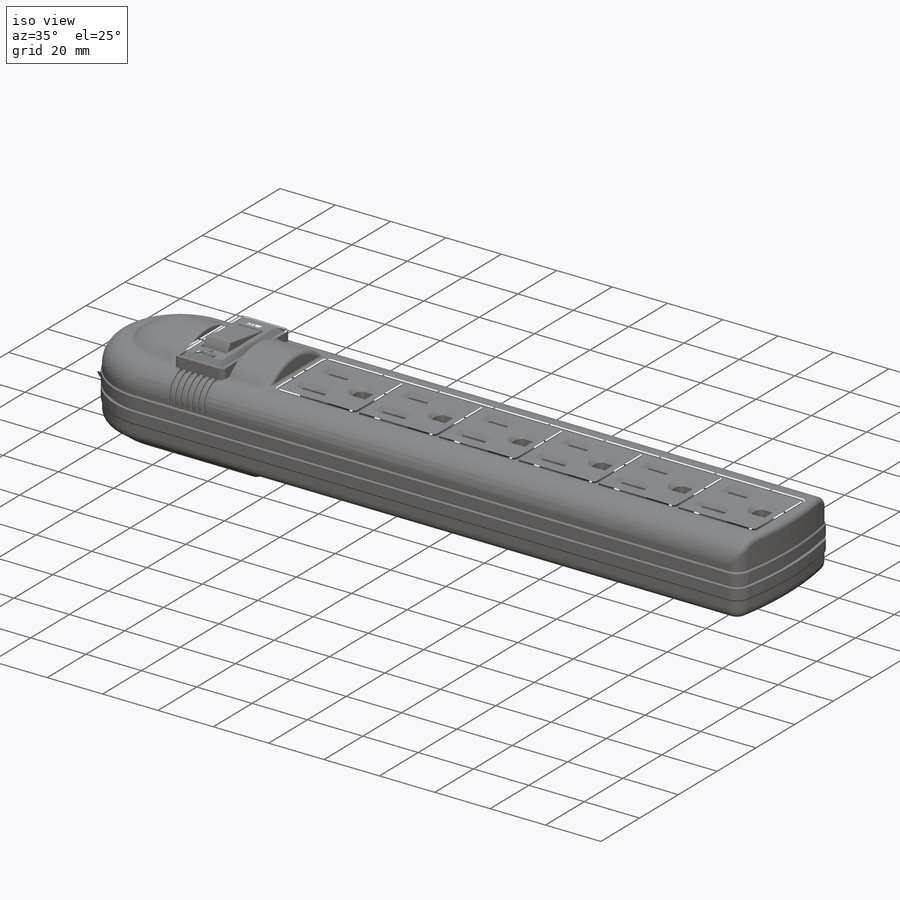
[diagram: iso view]
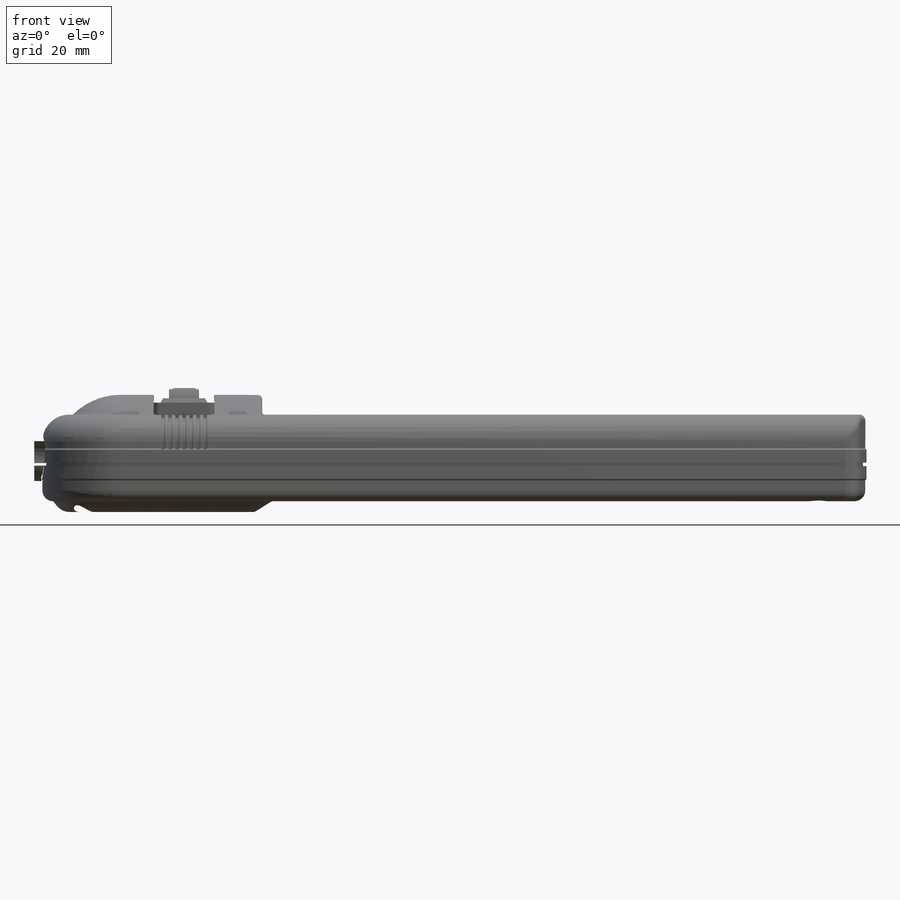
[diagram: front view]
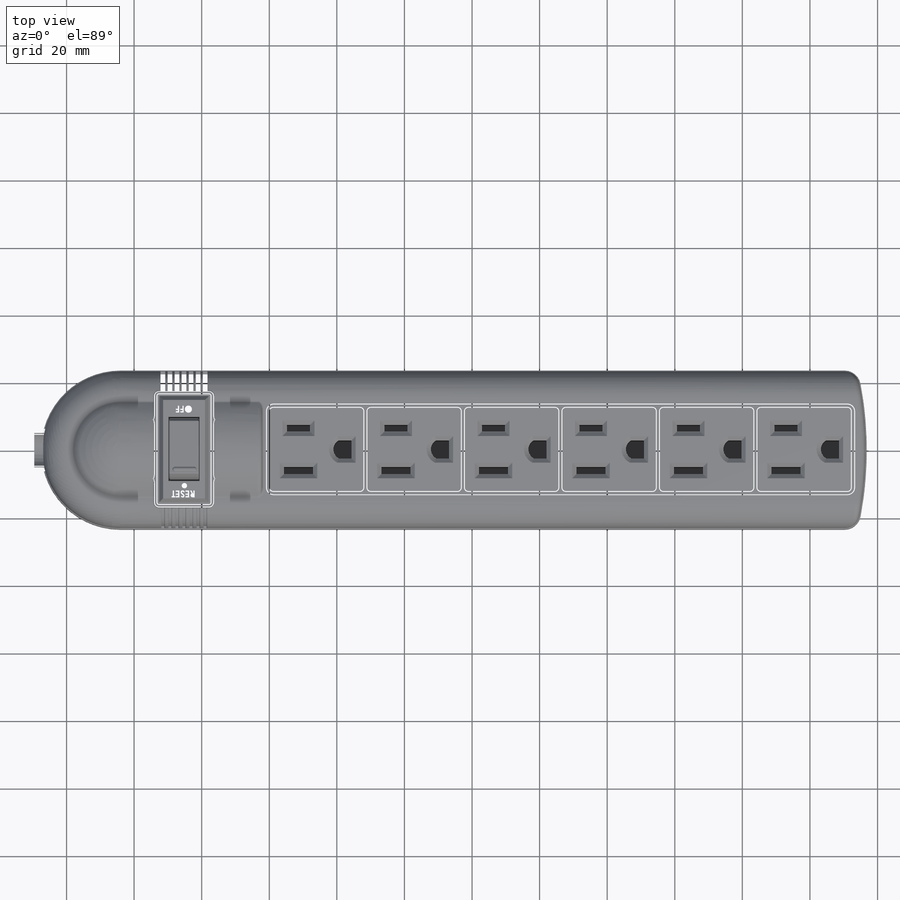
[diagram: top view]
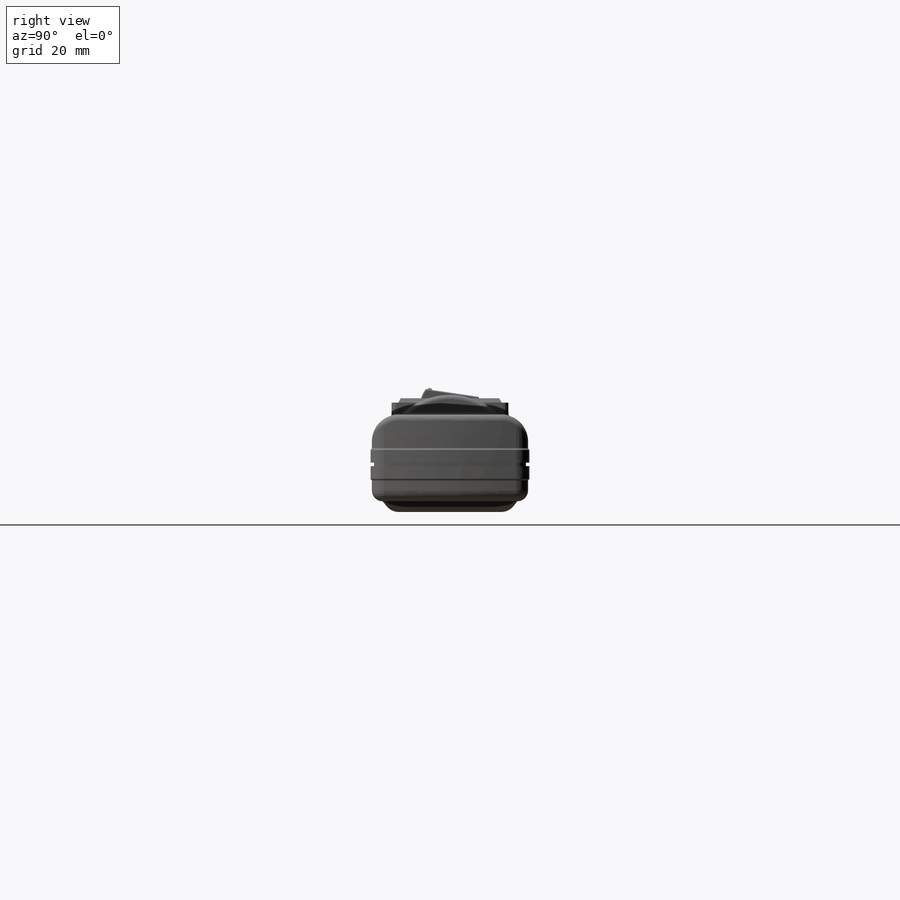
[diagram: right view]
SOLIDWORKS PART (.sldprt)
format: sldprt  version: not decoded by parser v0  size: 2,423,296 bytes
history: native  units: mm
features: fillet x43, sketch x31, extrude x15, cut_extrude x13, pattern_linear x6, plane x5, material x1, revolve x1, chamfer x1, mirror x1 (+11 scaffold rows collapsed)
feature tree (128):
  scaffold x11  (default folders/planes/origin — collapsed)
  material  "Material <not specified>"
  sketch  "Sketch1"  dims[c1.D1=4.7625mm c1.D3=46.99mm c2.D1=46.99mm c2.D2=46.99mm c2.D4=23.495mm c2.D5=214.3125mm c2.D6=214.3125mm]
  extrude  "Base-Extrude"  Depth=9.144mm
  sketch  "Sketch2"  dims[D1=1.016mm]
  cut_extrude  "Cut-Extrude1"  Depth=1.016mm
  sketch  "Sketch3"  dims[D1=0.381mm]
  extrude  "Boss-Extrude1"  Depth=10.16mm
  fillet  "Fillet1"  Radius=7.9375mm
  fillet  "Fillet2"  Radius=1.778mm
  fillet  "Fillet3"  Radius=0.381mm
  fillet  "Fillet4"  Radius=0.381mm
  sketch  "Sketch4"  dims[D1=0.381mm]
  extrude  "Boss-Extrude2"  Depth=6.35mm
  fillet  "Fillet5"  Radius=3.175mm
  sketch  "Sketch5"  dims[D2=3.175mm D1=44.7675mm]
  plane  "Plane1"  Offset=3.175mm
  sketch  "Sketch6"  dims[D3=3.175mm D2=5.08mm D1=2.54mm]
  fillet  "Fillet6"  Radius=4.7498mm
  fillet  "Fillet7"  Radius=1.524mm
  fillet  "Fillet8"  Radius=1.524mm
  sketch  "Sketch7"  dims[D6=3.175mm D1=74.93mm D2=28.448mm D3=14.224mm D4=~95.075491mm D5=42.545mm]
  cut_extrude  "Cut-Extrude2"  Depth=0.508mm
  plane  "Plane2"  Offset=124.026041mm
  sketch  "Sketch10"  dims[D1=28.067mm D2=14.0335mm D3=5.842mm]
  revolve  "Boss-Revolve2"  Angle=180deg
  sketch  "Sketch11"  dims[D1=0.0mm]
  extrude  "Boss-Extrude4"  Depth=41.91mm
  fillet  "Fillet15"  Radius=1.27mm
  fillet  "Fillet17"  Radius=0.762mm
  sketch  "Sketch13"  dims[D5=1.524mm D1=14.224mm D2=17.78mm D3=34.544mm D4=17.272mm]
  extrude  "Boss-Extrude5"  Depth=3.81mm
  sketch  "Sketch14"  dims[D1=0.0mm D2=0.0mm]
  cut_extrude  "Cut-Extrude3"  Depth=22.5425mm
  sketch  "Sketch15"  dims[D1=1.016mm]
  cut_extrude  "Cut-Extrude4"  Depth=1.016mm
  fillet  "Fillet18"  Radius=0.381mm
  fillet  "Fillet19"  Radius=0.381mm
  fillet  "Fillet20"  Radius=0.381mm
  fillet  "Fillet21"  Radius=0.381mm
  sketch  "Sketch16"
  extrude  "Boss-Extrude6"  Depth=2.032mm
  sketch  "Sketch17"  dims[D1=19.05mm D2=9.144mm D3=9.525mm D4=~12.385649mm D5=~1.620825mm]
  cut_extrude  "Cut-Extrude5"  Depth=9.144mm
  plane  "Plane3"  Offset=0.1524mm
  sketch  "Sketch18"  dims[D1=2.7432mm]
  extrude  "Boss-Extrude7"  Depth=8.8392mm
  fillet  "Fillet23"  Radius=0.381mm
  fillet  "Fillet24"  Radius=0.381mm
  fillet  "Fillet25"  Radius=0.381mm
  fillet  "Fillet26"  Radius=0.381mm
  sketch  "Sketch19"  dims[D1=1.4224mm D2=1.4224mm]
  extrude  "Boss-Extrude8"  Depth=0.4572mm
  fillet  "Fillet29"  Radius=0.7112mm
  sketch  "Sketch20"  dims[D5=2.032mm D1=26.5938mm D2=13.2969mm D3=~173.83125mm D4=1.397mm]
  cut_extrude  "Cut-Extrude6"  Depth=0.508mm
  sketch  "Sketch21"  dims[D5=1.27mm D1=0.635mm D2=28.194mm D3=25.146mm D4=12.573mm]
  extrude  "Boss-Extrude9"  Depth=0.508mm
  sketch  "Sketch22"  dims[D1=4.445mm D2=8.5598mm D3=5.334mm D4=3.81mm D5=6.9088mm D6=0.8255mm D7=10.4648mm D8=5.2324mm D9=2.032mm D10=2.032mm D11=5.334mm D12=2.667mm]
  cut_extrude  "Cut-Extrude7"  Depth=19.05mm
  chamfer  "Chamfer1"  Distance=1.27mm Angle=45deg
  pattern_linear  "LPattern2"  Count1=6 Count2=1 Spacing1=28.8544mm Spacing2=50mm
  fillet  "Fillet30"  Radius=0.381mm
  fillet  "Fillet31"  Radius=0.381mm
  plane  "Plane4"  Offset=8.89mm
  sketch  "Sketch24"  dims[D1=0.635mm]
  cut_extrude  "Cut-Extrude8"  Depth=0.889mm
  fillet  "Fillet32"  Radius=0.254mm
  fillet  "Fillet33"  Radius=0.254mm
  pattern_linear  "LPattern3"  Count1=4 Count2=1 Spacing1=2.0828mm Spacing2=50mm
  pattern_linear  "LPattern4"  Count1=4 Count2=1 Spacing1=2.0828mm Spacing2=50mm
  mirror  "Mirror9"
  fillet  "Fillet34"  Radius=0.254mm
  pattern_linear  "LPattern5"  Count1=4 Count2=1 Spacing1=2.0828mm Spacing2=50mm
  pattern_linear  "LPattern6"  Count1=4 Count2=1 Spacing1=2.0828mm Spacing2=50mm
  sketch  "Sketch25"  dims[D3=5.842mm D4=5.842mm D1=23.749mm D2=11.8745mm D5=~23.559285mm D6=12.7mm]
  cut_extrude  "Cut-Extrude9"  Depth=15.33525mm
  sketch  "Sketch26"  dims[D5=5.842mm D6=5.842mm D7=5.842mm D8=5.842mm D1=110.236mm D2=5.334mm D3=33.02mm D4=16.51mm]
  cut_extrude  "Cut-Extrude10"  Depth=15.33525mm
  sketch  "Sketch27"  dims[D1=1.651mm D2=1.651mm]
  extrude  "Boss-Extrude10"  Depth=3.048mm
  fillet  "Fillet35"  Radius=0.508mm
  fillet  "Fillet36"  Radius=0.508mm
  sketch  "Sketch28"  dims[D1=6.8072mm D2=3.81mm D3=1.905mm D4=10.16mm]
  cut_extrude  "Cut-Extrude11"  Depth=3.556mm
  sketch  "Sketch29"  dims[D1=1.397mm]
  extrude  "Boss-Extrude11"  Depth=1.524mm
  fillet  "Fillet37"  Radius=0.254mm
  pattern_linear  "LPattern7"  Count1=2 Count2=2 Spacing1=114.3mm Spacing2=19.05mm
  plane  "Plane5"  Offset=147.32mm
  sketch  "Sketch30"  dims[D1=13.462mm]
  extrude  "Boss-Extrude12"  Depth=10.7315mm
  sketch  "Sketch31"  dims[D1=1.651mm]
  cut_extrude  "Cut-Extrude13"  Depth=10.7315mm
  sketch  "Sketch33"
  cut_extrude  "Cut-Extrude14"  Depth=0.762mm
  fillet  "Fillet38"  Radius=0.254mm
  fillet  "Fillet39"  Radius=0.254mm
  fillet  "Fillet40"  Radius=0.254mm
  sketch  "Sketch34"
  extrude  "Boss-Extrude13"  Depth=0.127mm
  sketch  "Sketch35"
  extrude  "Boss-Extrude14"  Depth=0.127mm
  sketch  "Sketch36"  dims[D1=1.5748mm]
  extrude  "Boss-Extrude15"  Depth=0.127mm
  fillet  "Fillet43"  Radius=0.254mm
  fillet  "Fillet44"  Radius=0.254mm
  fillet  "Fillet45"  Radius=0.254mm
  fillet  "Fillet46"  Radius=0.254mm
  fillet  "Fillet47"  Radius=0.254mm
  fillet  "Fillet48"  Radius=0.254mm
  fillet  "Fillet49"  Radius=0.254mm
  fillet  "Fillet50"  Radius=0.254mm
  fillet  "Fillet51"  Radius=0.254mm
  fillet  "Fillet52"  Radius=0.254mm
  fillet  "Fillet53"  Radius=0.254mm
  fillet  "Fillet54"  Radius=0.254mm
  fillet  "Fillet55"  Radius=0.254mm
decode coverage: 106 of 111 modeling features carry decoded parameters
note: ~ marks probable driven/reference dimensions
note: suppression state not decoded; provenance and decode notes live in map.json
